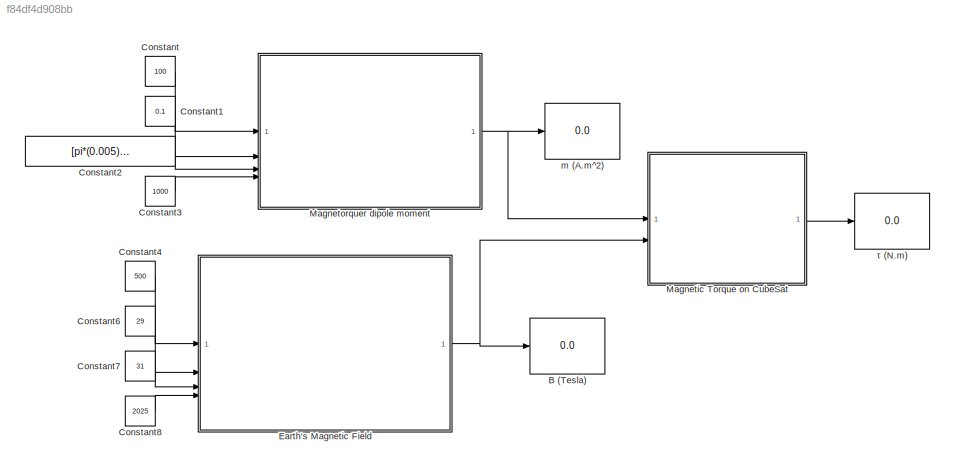
MODEL slx_f84df4d908bb
KIND model
CONFIG AbsTol = auto
CONFIG EnableMultiTasking = off
CONFIG FixedStep = auto
CONFIG MaxStep = auto
CONFIG MinStep = auto
CONFIG RelTol = 1e-3
CONFIG SampleTimeConstraint = Unconstrained
CONFIG SolverName = VariableStepAuto
CONFIG StartTime = 0.0
CONFIG StopTime = 10.0
BLOCK [Display] B (Tesla)
  Decimation = 1
BLOCK [Constant] Constant
  Value = 100
BLOCK [Constant] Constant1
  Value = 0.1
BLOCK [Constant] Constant2
  Value = [pi*(0.005)^2 0 0]
BLOCK [Constant] Constant3
  Value = 1000
BLOCK [Constant] Constant4
  Value = 500
BLOCK [Constant] Constant6
  Value = 29
BLOCK [Constant] Constant7
  Value = 31
BLOCK [Constant] Constant8
  Value = 2025
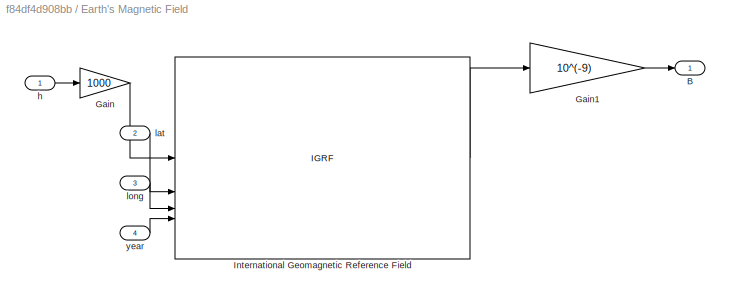
BLOCK [SubSystem] Earth's Magnetic Field
BLOCK [Outport] Earth's Magnetic Field/B
BLOCK [Gain] Earth's Magnetic Field/Gain
  Gain = 1000
BLOCK [Gain] Earth's Magnetic Field/Gain1
  Gain = 10^(-9)
  Multiplication = Matrix(K*u)
BLOCK [IGRF] Earth's Magnetic Field/International Geomagnetic Reference Field
  AttributesFormatString = %<generation>
  day = 1
  month = January
  year = 2020
BLOCK [Inport] Earth's Magnetic Field/h
BLOCK [Inport] Earth's Magnetic Field/lat
  Port = 2
BLOCK [Inport] Earth's Magnetic Field/long
  Port = 3
BLOCK [Inport] Earth's Magnetic Field/year
  Port = 4
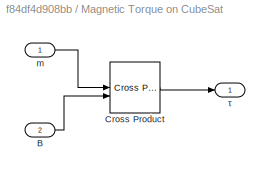
BLOCK [SubSystem] Magnetic Torque on CubeSat
BLOCK [Inport] Magnetic Torque on CubeSat/B
  Port = 2
BLOCK [Reference] Magnetic Torque on CubeSat/Cross Product  REF=matrix_library/Cross Product
  LibrarySourceBlock = simulink/Matrix\nOperations/Cross Product
  SourceBlock = matrix_library/Cross Product
  SourceType = CrossProduct
BLOCK [Inport] Magnetic Torque on CubeSat/m
BLOCK [Outport] Magnetic Torque on CubeSat/τ
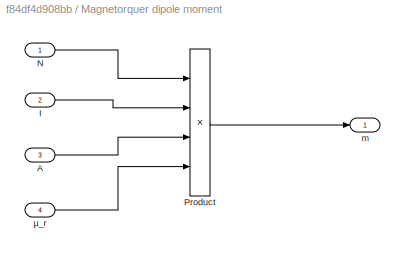
BLOCK [SubSystem] Magnetorquer dipole moment
BLOCK [Inport] Magnetorquer dipole moment/A
  Port = 3
BLOCK [Inport] Magnetorquer dipole moment/I
  Port = 2
BLOCK [Inport] Magnetorquer dipole moment/N
BLOCK [Product] Magnetorquer dipole moment/Product
  Inputs = 4
BLOCK [Outport] Magnetorquer dipole moment/m
BLOCK [Inport] Magnetorquer dipole moment/μ_r
  Port = 4
BLOCK [Display] m (A.m^2)
  Decimation = 1
BLOCK [Display] τ (N.m)
  Decimation = 1
LINE Constant1:1 -> Magnetorquer dipole moment:2
LINE Constant2:1 -> Magnetorquer dipole moment:3
LINE Constant3:1 -> Magnetorquer dipole moment:4
LINE Constant4:1 -> Earth's Magnetic Field:1
LINE Constant6:1 -> Earth's Magnetic Field:2
LINE Constant7:1 -> Earth's Magnetic Field:3
LINE Constant8:1 -> Earth's Magnetic Field:4
LINE Constant:1 -> Magnetorquer dipole moment:1
LINE Earth's Magnetic Field/Gain1:1 -> Earth's Magnetic Field/B:1
LINE Earth's Magnetic Field/Gain:1 -> Earth's Magnetic Field/International Geomagnetic Reference Field:1
LINE Earth's Magnetic Field/International Geomagnetic Reference Field:1 -> Earth's Magnetic Field/Gain1:1
LINE Earth's Magnetic Field/h:1 -> Earth's Magnetic Field/Gain:1
LINE Earth's Magnetic Field/lat:1 -> Earth's Magnetic Field/International Geomagnetic Reference Field:2
LINE Earth's Magnetic Field/long:1 -> Earth's Magnetic Field/International Geomagnetic Reference Field:3
LINE Earth's Magnetic Field/year:1 -> Earth's Magnetic Field/International Geomagnetic Reference Field:4
NET Earth's Magnetic Field:1 -> B (Tesla):1, Magnetic Torque on CubeSat:2
LINE Magnetic Torque on CubeSat/B:1 -> Magnetic Torque on CubeSat/Cross Product:2
LINE Magnetic Torque on CubeSat/Cross Product:1 -> Magnetic Torque on CubeSat/τ:1
LINE Magnetic Torque on CubeSat/m:1 -> Magnetic Torque on CubeSat/Cross Product:1
LINE Magnetic Torque on CubeSat:1 -> τ (N.m):1
LINE Magnetorquer dipole moment/A:1 -> Magnetorquer dipole moment/Product:3
LINE Magnetorquer dipole moment/I:1 -> Magnetorquer dipole moment/Product:2
LINE Magnetorquer dipole moment/N:1 -> Magnetorquer dipole moment/Product:1
LINE Magnetorquer dipole moment/Product:1 -> Magnetorquer dipole moment/m:1
LINE Magnetorquer dipole moment/μ_r:1 -> Magnetorquer dipole moment/Product:4
NET Magnetorquer dipole moment:1 -> Magnetic Torque on CubeSat:1, m (A.m^2):1
note: NET lines group one-source signal fan-out (src -> all destinations, sorted); 1:1 wires keep LINE
